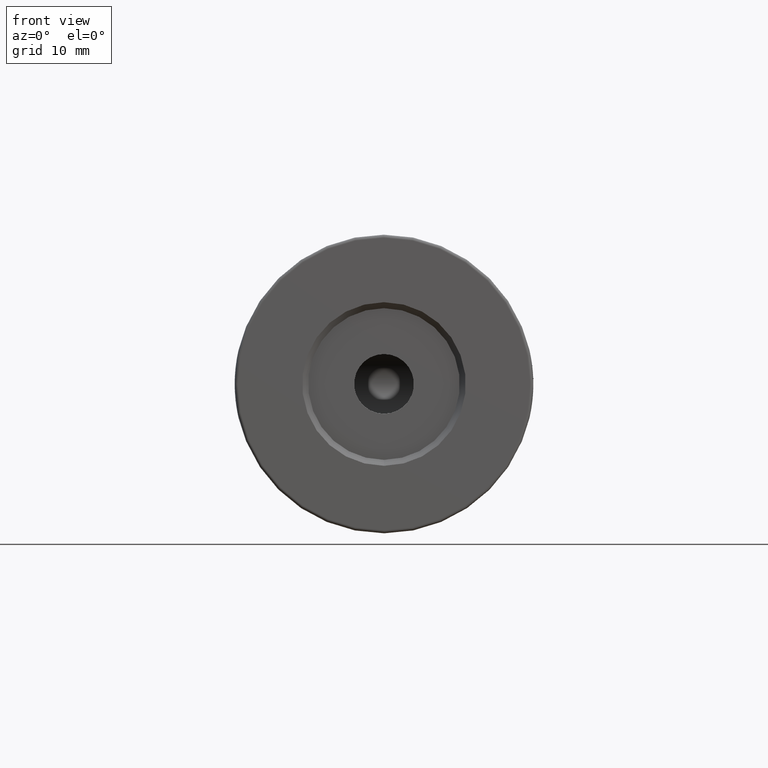
[diagram: clean part render]
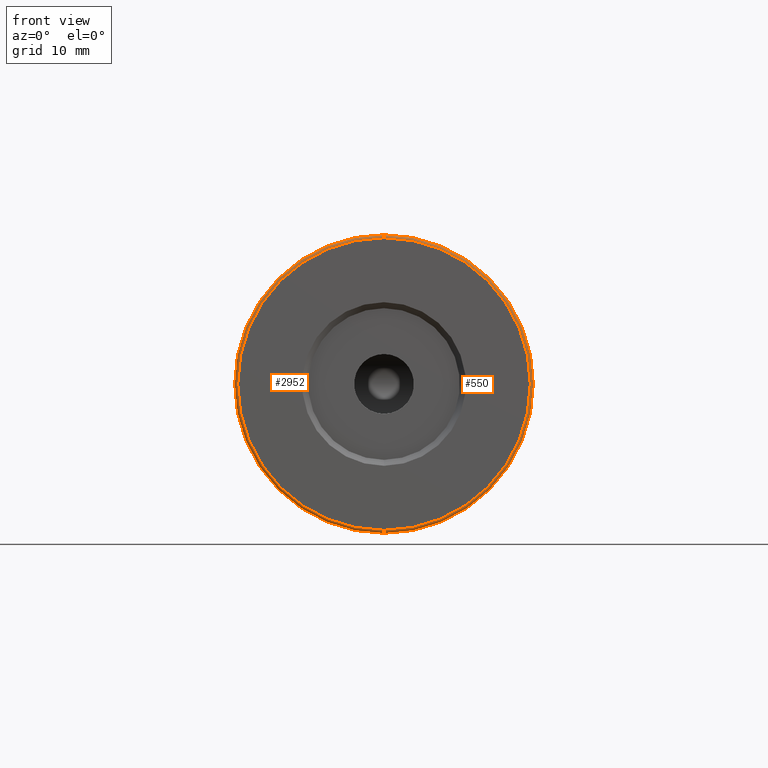
[diagram: same view with one multi-face feature highlighted, each face labeled with its STEP entity id]
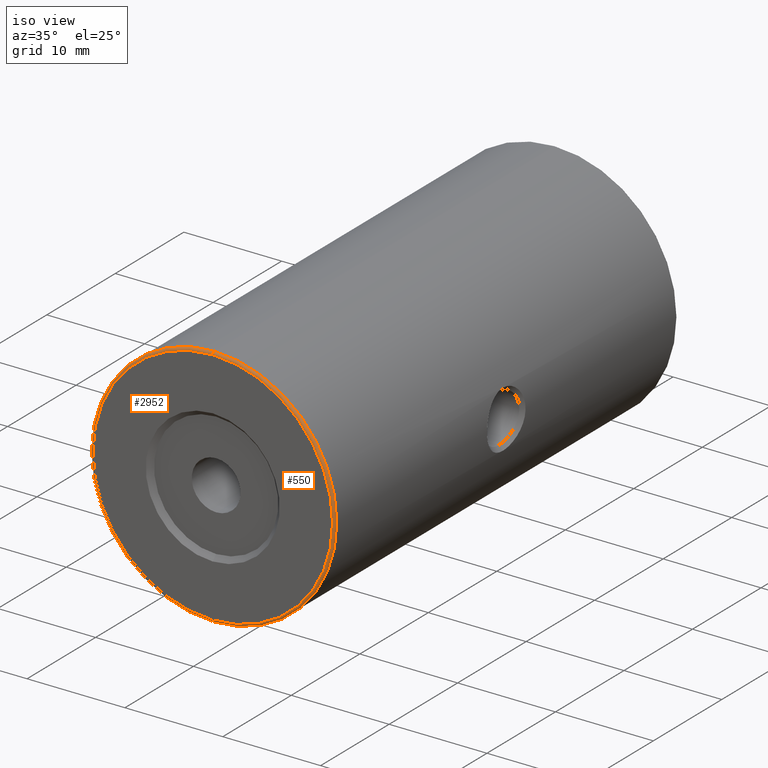
[diagram: same view with one multi-face feature highlighted, each face labeled with its STEP entity id]
A machine part, front view. The highlighted faces form ONE feature: a constant-radius fillet chain: 2 tangent blend faces with common blend radius 0.25 mm. The faces share edges in the B-rep.
A second angle (iso view) of the same feature is appended — it is thin or edge-on in the first view.
Their STEP definitions:
[1] entity #2952 (Torus):
#10 = DIRECTION ( 'NONE',  ( 0.0000000000000000000, 0.0000000000000000000, 1.000000000000000000 ) ) ;
#35 = EDGE_CURVE ( 'NONE', #2538, #124, #1212, .T. ) ;
#49 = DIRECTION ( 'NONE',  ( -1.000000000000000000, 0.0000000000000000000, 0.0000000000000000000 ) ) ;
#124 = VERTEX_POINT ( 'NONE', #1129 ) ;
#130 = CARTESIAN_POINT ( 'NONE',  ( -22.50520183104453409, -23.35174781523060972, 62.50000000000000000 ) ) ;
#201 = CIRCLE ( 'NONE', #2827, 12.24999999999999645 ) ;
#254 = EDGE_CURVE ( 'NONE', #124, #739, #258, .T. ) ;
#258 = CIRCLE ( 'NONE', #2602, 12.49999999999999645 ) ;
#581 = ORIENTED_EDGE ( 'NONE', *, *, #35, .F. ) ;
#604 = CARTESIAN_POINT ( 'NONE',  ( -22.50520183104453409, -23.60174781523060972, 50.00000000000000000 ) ) ;
#738 = FACE_OUTER_BOUND ( 'NONE', #3416, .T. ) ;
#739 = VERTEX_POINT ( 'NONE', #130 ) ;
#831 = DIRECTION ( 'NONE',  ( 0.0000000000000000000, 0.0000000000000000000, -1.000000000000000000 ) ) ;
#926 = CIRCLE ( 'NONE', #1258, 0.2500000000000002220 ) ;
#1070 = VERTEX_POINT ( 'NONE', #1763 ) ;
#1111 = CARTESIAN_POINT ( 'NONE',  ( -22.50520183104453409, -23.35174781523060972, 37.75000000000000711 ) ) ;
#1129 = CARTESIAN_POINT ( 'NONE',  ( -22.50520183104453409, -23.35174781523060972, 37.50000000000000711 ) ) ;
#1149 = DIRECTION ( 'NONE',  ( 1.000000000000000000, -0.0000000000000000000, 1.224646799147353207E-16 ) ) ;
#1212 = CIRCLE ( 'NONE', #2213, 0.2500000000000002220 ) ;
#1258 = AXIS2_PLACEMENT_3D ( 'NONE', #2438, #49, #3246 ) ;
#1663 = DIRECTION ( 'NONE',  ( -0.0000000000000000000, -1.000000000000000000, -0.0000000000000000000 ) ) ;
#1763 = CARTESIAN_POINT ( 'NONE',  ( -22.50520183104453409, -23.60174781523060972, 62.25000000000000000 ) ) ;
#2082 = ORIENTED_EDGE ( 'NONE', *, *, #254, .F. ) ;
#2117 = CARTESIAN_POINT ( 'NONE',  ( -22.50520183104453409, -23.35174781523060972, 50.00000000000000000 ) ) ;
#2213 = AXIS2_PLACEMENT_3D ( 'NONE', #1111, #1149, #831 ) ;
#2436 = TOROIDAL_SURFACE ( 'NONE', #2773, 12.25000000000000000, 0.2500000000000000000 ) ;
#2438 = CARTESIAN_POINT ( 'NONE',  ( -22.50520183104453409, -23.35174781523060972, 62.25000000000000000 ) ) ;
#2482 = DIRECTION ( 'NONE',  ( 0.0000000000000000000, 0.0000000000000000000, 1.000000000000000000 ) ) ;
#2538 = VERTEX_POINT ( 'NONE', #3219 ) ;
#2602 = AXIS2_PLACEMENT_3D ( 'NONE', #2959, #2978, #2482 ) ;
#2732 = DIRECTION ( 'NONE',  ( 0.0000000000000000000, 0.0000000000000000000, 1.000000000000000000 ) ) ;
#2773 = AXIS2_PLACEMENT_3D ( 'NONE', #2117, #3433, #10 ) ;
#2827 = AXIS2_PLACEMENT_3D ( 'NONE', #604, #1663, #2732 ) ;
#2890 = ORIENTED_EDGE ( 'NONE', *, *, #3297, .F. ) ;
#2952 = ADVANCED_FACE ( 'NONE', ( #738 ), #2436, .T. ) ;
#2959 = CARTESIAN_POINT ( 'NONE',  ( -22.50520183104453409, -23.35174781523060972, 50.00000000000000000 ) ) ;
#2978 = DIRECTION ( 'NONE',  ( 0.0000000000000000000, 1.000000000000000000, 0.0000000000000000000 ) ) ;
#3219 = CARTESIAN_POINT ( 'NONE',  ( -22.50520183104453409, -23.60174781523060972, 37.75000000000000711 ) ) ;
#3239 = EDGE_CURVE ( 'NONE', #1070, #739, #926, .T. ) ;
#3246 = DIRECTION ( 'NONE',  ( 0.0000000000000000000, 0.0000000000000000000, 1.000000000000000000 ) ) ;
#3297 = EDGE_CURVE ( 'NONE', #1070, #2538, #201, .T. ) ;
#3313 = ORIENTED_EDGE ( 'NONE', *, *, #3239, .T. ) ;
#3416 = EDGE_LOOP ( 'NONE', ( #581, #2890, #3313, #2082 ) ) ;
#3433 = DIRECTION ( 'NONE',  ( 0.0000000000000000000, 1.000000000000000000, 0.0000000000000000000 ) ) ;
[2] entity #550 (Torus):
#35 = EDGE_CURVE ( 'NONE', #2538, #124, #1212, .T. ) ;
#49 = DIRECTION ( 'NONE',  ( -1.000000000000000000, 0.0000000000000000000, 0.0000000000000000000 ) ) ;
#72 = DIRECTION ( 'NONE',  ( 0.0000000000000000000, 0.0000000000000000000, 1.000000000000000000 ) ) ;
#106 = CIRCLE ( 'NONE', #3114, 12.24999999999999645 ) ;
#124 = VERTEX_POINT ( 'NONE', #1129 ) ;
#130 = CARTESIAN_POINT ( 'NONE',  ( -22.50520183104453409, -23.35174781523060972, 62.50000000000000000 ) ) ;
#468 = DIRECTION ( 'NONE',  ( -0.0000000000000000000, -1.000000000000000000, -0.0000000000000000000 ) ) ;
#472 = ORIENTED_EDGE ( 'NONE', *, *, #35, .T. ) ;
#501 = DIRECTION ( 'NONE',  ( 0.0000000000000000000, 1.000000000000000000, 0.0000000000000000000 ) ) ;
#550 = ADVANCED_FACE ( 'NONE', ( #2268 ), #1373, .T. ) ;
#629 = CARTESIAN_POINT ( 'NONE',  ( -22.50520183104453409, -23.35174781523060972, 50.00000000000000000 ) ) ;
#651 = AXIS2_PLACEMENT_3D ( 'NONE', #629, #3270, #72 ) ;
#739 = VERTEX_POINT ( 'NONE', #130 ) ;
#831 = DIRECTION ( 'NONE',  ( 0.0000000000000000000, 0.0000000000000000000, -1.000000000000000000 ) ) ;
#926 = CIRCLE ( 'NONE', #1258, 0.2500000000000002220 ) ;
#1070 = VERTEX_POINT ( 'NONE', #1763 ) ;
#1111 = CARTESIAN_POINT ( 'NONE',  ( -22.50520183104453409, -23.35174781523060972, 37.75000000000000711 ) ) ;
#1129 = CARTESIAN_POINT ( 'NONE',  ( -22.50520183104453409, -23.35174781523060972, 37.50000000000000711 ) ) ;
#1149 = DIRECTION ( 'NONE',  ( 1.000000000000000000, -0.0000000000000000000, 1.224646799147353207E-16 ) ) ;
#1212 = CIRCLE ( 'NONE', #2213, 0.2500000000000002220 ) ;
#1258 = AXIS2_PLACEMENT_3D ( 'NONE', #2438, #49, #3246 ) ;
#1373 = TOROIDAL_SURFACE ( 'NONE', #2945, 12.25000000000000000, 0.2500000000000000000 ) ;
#1579 = EDGE_CURVE ( 'NONE', #2538, #1070, #106, .T. ) ;
#1623 = ORIENTED_EDGE ( 'NONE', *, *, #3239, .F. ) ;
#1763 = CARTESIAN_POINT ( 'NONE',  ( -22.50520183104453409, -23.60174781523060972, 62.25000000000000000 ) ) ;
#1922 = EDGE_LOOP ( 'NONE', ( #2377, #472, #1960, #1623 ) ) ;
#1960 = ORIENTED_EDGE ( 'NONE', *, *, #3099, .F. ) ;
#2144 = CARTESIAN_POINT ( 'NONE',  ( -22.50520183104453409, -23.60174781523060972, 50.00000000000000000 ) ) ;
#2213 = AXIS2_PLACEMENT_3D ( 'NONE', #1111, #1149, #831 ) ;
#2268 = FACE_OUTER_BOUND ( 'NONE', #1922, .T. ) ;
#2320 = CIRCLE ( 'NONE', #651, 12.49999999999999645 ) ;
#2349 = CARTESIAN_POINT ( 'NONE',  ( -22.50520183104453409, -23.35174781523060972, 50.00000000000000000 ) ) ;
#2377 = ORIENTED_EDGE ( 'NONE', *, *, #1579, .F. ) ;
#2438 = CARTESIAN_POINT ( 'NONE',  ( -22.50520183104453409, -23.35174781523060972, 62.25000000000000000 ) ) ;
#2538 = VERTEX_POINT ( 'NONE', #3219 ) ;
#2615 = DIRECTION ( 'NONE',  ( 0.0000000000000000000, 0.0000000000000000000, 1.000000000000000000 ) ) ;
#2945 = AXIS2_PLACEMENT_3D ( 'NONE', #2349, #501, #3393 ) ;
#3099 = EDGE_CURVE ( 'NONE', #739, #124, #2320, .T. ) ;
#3114 = AXIS2_PLACEMENT_3D ( 'NONE', #2144, #468, #2615 ) ;
#3219 = CARTESIAN_POINT ( 'NONE',  ( -22.50520183104453409, -23.60174781523060972, 37.75000000000000711 ) ) ;
#3239 = EDGE_CURVE ( 'NONE', #1070, #739, #926, .T. ) ;
#3246 = DIRECTION ( 'NONE',  ( 0.0000000000000000000, 0.0000000000000000000, 1.000000000000000000 ) ) ;
#3270 = DIRECTION ( 'NONE',  ( 0.0000000000000000000, 1.000000000000000000, 0.0000000000000000000 ) ) ;
#3393 = DIRECTION ( 'NONE',  ( 0.0000000000000000000, 0.0000000000000000000, 1.000000000000000000 ) ) ;